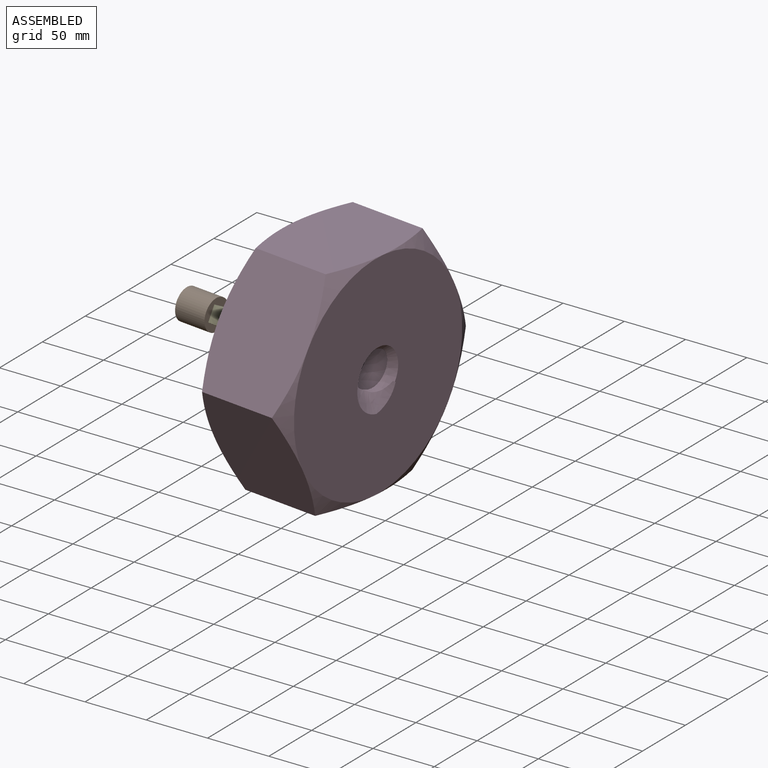
[diagram: assembled view]
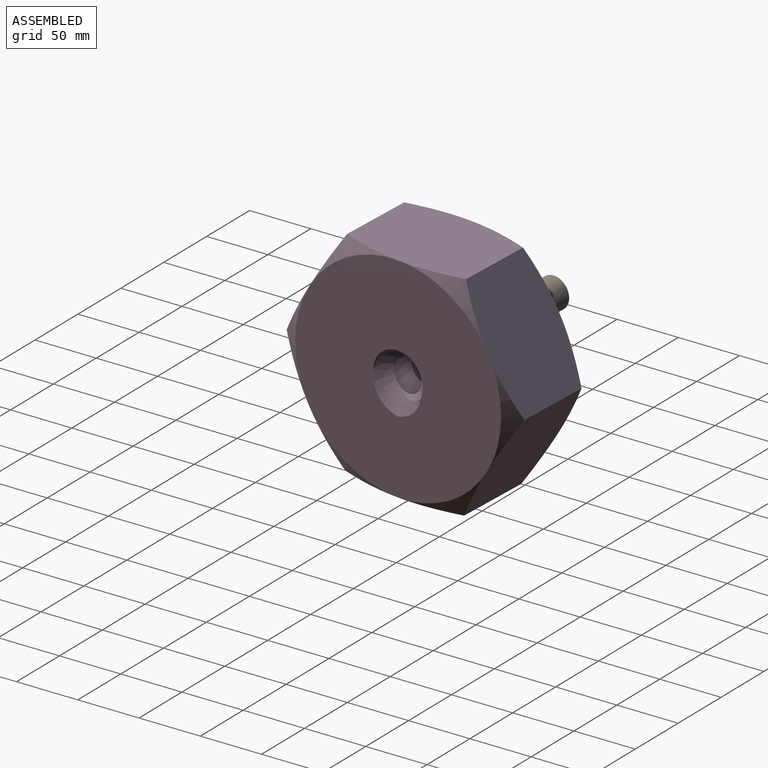
[diagram: assembled view, second angle]
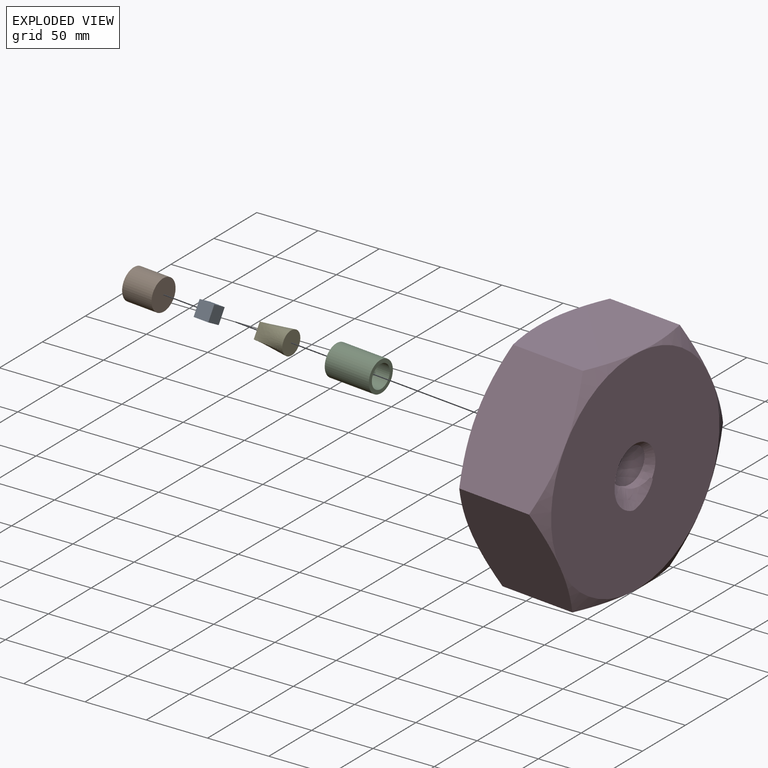
[diagram: exploded view]
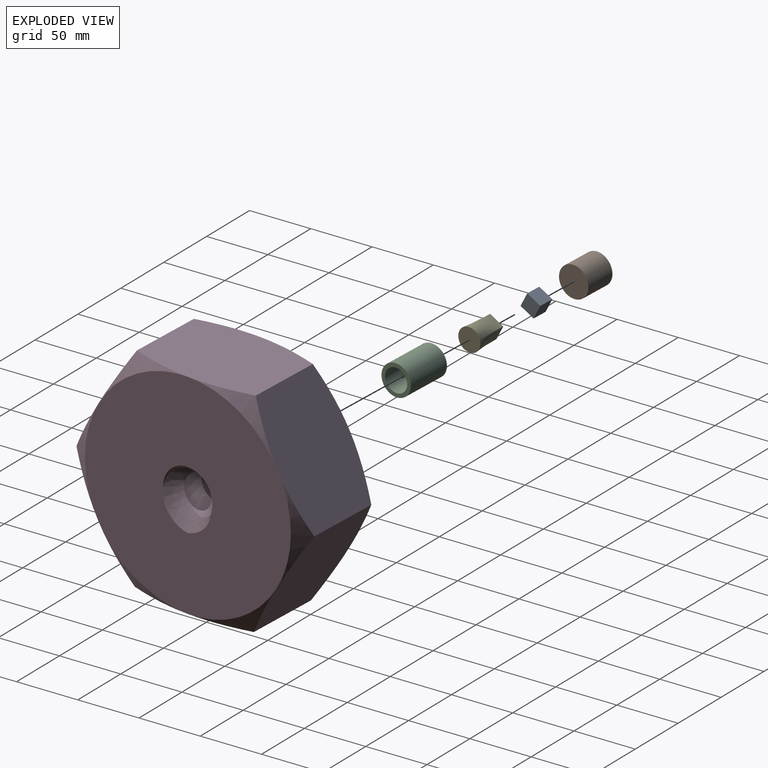
[diagram: exploded view, second angle]
ASSEMBLY  parts=5 mates=4
PART A: 6 faces, bbox 12.7x12.7x12.7 mm
  f0: plane 12.7x12.7mm, normal (0,0,1), area 161.3mm2, adj f1,f3,f4,f5
  f1: plane 12.7x12.7mm, normal (-1,0,0), area 161.3mm2, adj f0,f2,f4,f5
  f2: plane 12.7x12.7mm, normal (0,0,-1), area 161.3mm2, adj f1,f3,f4,f5
  f3: plane 12.7x12.7mm, normal (1,0,0), area 161.3mm2, adj f0,f2,f4,f5
  f4: plane 12.7x12.7mm, normal (0,-1,0), area 161.3mm2, adj f0,f1,f2,f3
  f5: plane 12.7x12.7mm, normal (0,1,0), area 161.3mm2, adj f0,f1,f2,f3
PART B: 3 faces, bbox 25.4x25.4x25.4 mm
  f0: plane 25.4x25.4mm, normal (0,0,1), area 506.7mm2, adj f1
  f1: cylinder r=12.7mm len=25.4mm, axis (0,0,1), area 2026.8mm2, adj f0,f2
  f2: plane 25.4x25.4mm, normal (0,0,-1), area 506.7mm2, adj f1
PART C: 4 faces, bbox 38.1x25.4x25.4 mm
  f0: cylinder r=9.53mm len=38.1mm, axis (1,0,0), area 2280.2mm2, adj f1,f2
  f1: plane 25.4x25.4mm, normal (-1,0,0), area 221.7mm2, adj f0,f3
  f2: plane 25.4x25.4mm, normal (1,0,0), area 221.7mm2, adj f0,f3
  f3: cylinder r=12.7mm len=38.1mm, axis (1,0,0), area 3040.2mm2, adj f1,f2
PART D: 26 faces, bbox 205.3x205.3x95.7 mm
  f0: plane 177.8x177.8mm, normal (0,0,-1), area 23178.9mm2, adj f5,f6,f8,f10,f12,f14,f21,f23
  f1: plane 177.8x177.8mm, normal (0,0,1), area 23176.9mm2, adj f3,f4,f7,f9,f11,f13,f22,f24
  f2: cylinder r=12.7mm len=59.03mm, axis (0,0,1), area 86.6mm2, adj f21,f22,f24,f25
  f3: cone r=150.49mm half-angle=60deg, axis (0,0,-1), area 490.5mm2, adj f1,f15,f16
  f4: cone r=150.49mm half-angle=60deg, axis (0,0,-1), area 490.5mm2, adj f1,f15,f20
  f5: cone r=150.49mm half-angle=60deg, axis (0,0,1), area 490.5mm2, adj f0,f15,f16
  f6: cone r=150.49mm half-angle=60deg, axis (0,0,1), area 490.5mm2, adj f0,f15,f20
  f7: cone r=150.49mm half-angle=60deg, axis (0,0,-1), area 490.5mm2, adj f1,f16,f17
  f8: cone r=150.49mm half-angle=60deg, axis (0,0,1), area 490.5mm2, adj f0,f16,f17
  f9: cone r=150.49mm half-angle=60deg, axis (0,0,-1), area 490.5mm2, adj f1,f17,f18
  f10: cone r=150.49mm half-angle=60deg, axis (0,0,1), area 490.5mm2, adj f0,f17,f18
  f11: cone r=150.49mm half-angle=60deg, axis (0,0,-1), area 490.5mm2, adj f1,f18,f19
  f12: cone r=150.49mm half-angle=60deg, axis (0,0,1), area 490.5mm2, adj f0,f18,f19
  f13: cone r=150.49mm half-angle=60deg, axis (0,0,-1), area 490.5mm2, adj f1,f19,f20
  f14: cone r=150.49mm half-angle=60deg, axis (0,0,1), area 490.5mm2, adj f0,f19,f20
  f15: plane 88.9x76.23mm, normal (-0.5,-0.87,0), area 7263mm2, adj f3,f4,f5,f6,f16,f20
  f16: plane 102.69x76.23mm, normal (-1,0,0), area 7263mm2, adj f3,f5,f7,f8,f15,f17
  f17: plane 88.9x76.23mm, normal (-0.5,0.87,0), area 7263mm2, adj f7,f8,f9,f10,f16,f18
  f18: plane 88.9x76.23mm, normal (0.5,0.87,0), area 7263mm2, adj f9,f10,f11,f12,f17,f19
  f19: plane 102.69x76.23mm, normal (1,0,0), area 7263mm2, adj f11,f12,f13,f14,f18,f20
  f20: plane 88.9x76.23mm, normal (0.5,-0.87,0), area 7263mm2, adj f4,f6,f13,f14,f15,f19
  f21: cone r=21.29mm half-angle=45deg, axis (0,0,-1), area 404.2mm2, adj f0,f2,f23,f24,f25
  f22: cone r=12.7mm half-angle=45deg, axis (0,0,1), area 401.7mm2, adj f1,f2,f24,f25
  f23: plane 2.06x1.03mm, normal (0,1,0), area 0.5mm2, adj f0,f21,f25
  f24: bspline ~91.51x59.43mm, area 9729.7mm2, adj f0,f1,f2,f21,f22,f25
  f25: bspline ~87.79x59.43mm, area 9209.9mm2, adj f0,f1,f2,f21,f22,f23,f24
PART E: 6 faces, bbox 25.4x19.1x19.1 mm
  f0: plane 19.05x19.05mm, normal (1,0,0), area 285mm2, adj f2,f3,f4,f5
  f1: plane 12.7x12.7mm, normal (-1,0,0), area 161.3mm2, adj f2,f3,f4,f5
  f2: bspline ~25.4x13.47mm, area 346.9mm2, adj f0,f1,f3,f5
  f3: bspline ~25.4x13.47mm, area 346.9mm2, adj f0,f1,f2,f4
  f4: bspline ~25.4x13.47mm, area 346.9mm2, adj f0,f1,f3,f5
  f5: bspline ~25.4x13.47mm, area 346.9mm2, adj f0,f1,f2,f4
PLACE A rot(axis=(0.04,0.86,0.51),179.1deg) t=(61.11,-128.41,-31.03)mm
PLACE B rot(axis=(0.71,0.15,0.68),157.3deg) t=(88.64,-112.24,1.79)mm
PLACE C rot(axis=(-0.99,0.09,-0.13),28.8deg) t=(124.42,-133.11,-32.67)mm
PLACE D rot(axis=(-0.67,-0.34,0.66),136.4deg) t=(162.39,-136.12,-33.58)mm fixed
PLACE E rot(axis=(-0.99,0.09,-0.13),28.8deg) t=(124.42,-133.11,-32.67)mm
MATE fastened A.f3 <-> B.f1  axis (-1,0.07,0.03) through (86.44,-130.29,-31.69)mm
MATE fastened E.f1 <-> A.f1  axis (-1,0.07,0.03) through (99.1,-131.23,-32.01)mm
MATE fastened C.f0 <-> E.f0  axis (-1,0.07,0.03) through (124.42,-133.11,-32.67)mm
MATE cylindrical C.f0 <-> D.f1  axis (1,-0.07,-0.03) through (162.4,-135.93,-33.65)mm
